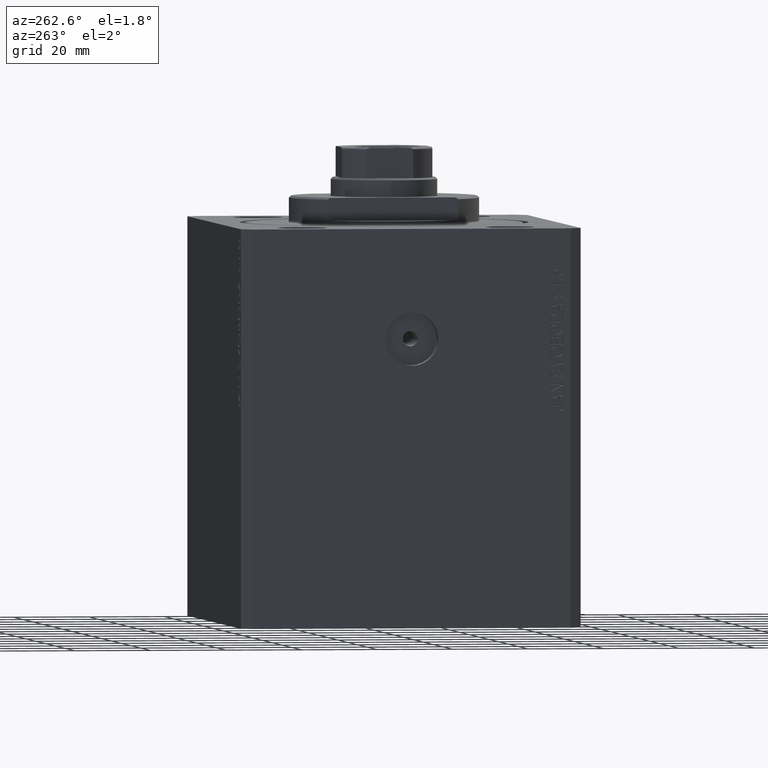
[diagram: clean part render]
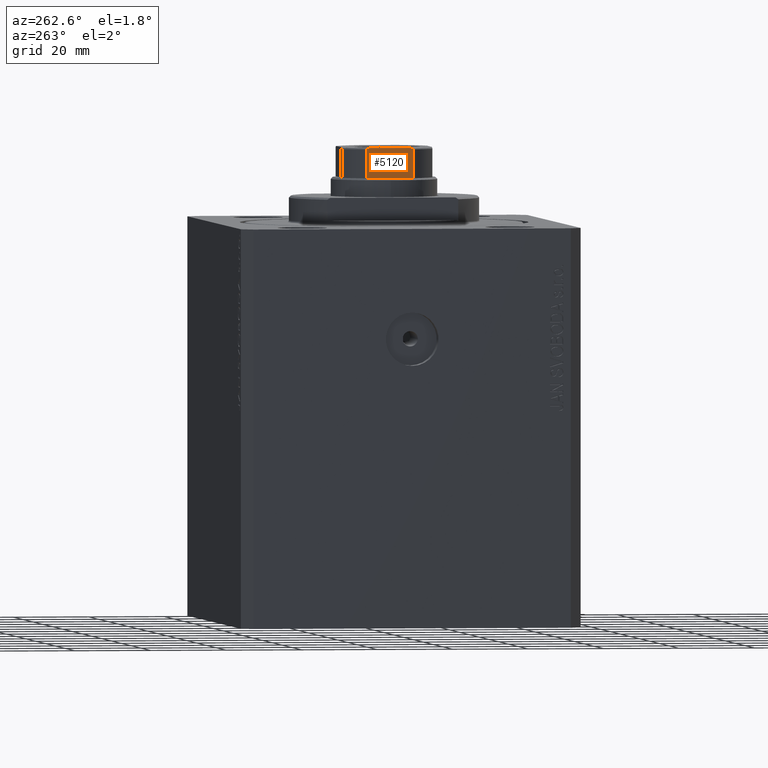
[diagram: same view with one face highlighted and labeled with its STEP entity id]
A machine part, auxiliary view. The second image highlights one B-rep face of the part: STEP entity #5120.
In plain terms, the highlighted planar face has unit normal (1, 0, 0).
Its self-contained STEP definition (entity closure, byte-faithful):
#1864 = VECTOR ( 'NONE', #12775, 1000.000000000000000 ) ;
#2467 = ORIENTED_EDGE ( 'NONE', *, *, #18806, .F. ) ;
#2631 = CARTESIAN_POINT ( 'NONE',  ( -11.99999999999999822, -5.230795946637844196, 107.0000000000000426 ) ) ;
#2744 = PLANE ( 'NONE',  #6636 ) ;
#2908 = EDGE_CURVE ( 'NONE', #29739, #20045, #37519, .T. ) ;
#3051 = LINE ( 'NONE', #44109, #1864 ) ;
#3403 = CARTESIAN_POINT ( 'NONE',  ( -11.99999999999999822, 11.99999999999999822, 107.0000000000000142 ) ) ;
#3907 = LINE ( 'NONE', #32117, #34719 ) ;
#4070 = EDGE_CURVE ( 'NONE', #11440, #29739, #3907, .T. ) ;
#4339 = DIRECTION ( 'NONE',  ( 7.228014483236695816E-17, -1.000000000000000000, 0.000000000000000000 ) ) ;
#4907 = CARTESIAN_POINT ( 'NONE',  ( -12.00000000000000000, 6.184658438426490434, 106.5000000000000142 ) ) ;
#5120 = ADVANCED_FACE ( 'NONE', ( #20769 ), #2744, .F. ) ;
#6011 = CARTESIAN_POINT ( 'NONE',  ( -11.99999999999999822, -6.091003570118828314, 106.7080862465981426 ) ) ;
#6636 = AXIS2_PLACEMENT_3D ( 'NONE', #3403, #34325, #20099 ) ;
#6829 = CARTESIAN_POINT ( 'NONE',  ( -12.00000000000000178, -6.184658438426485993, -0.001000000000001000089 ) ) ;
#6890 = ORIENTED_EDGE ( 'NONE', *, *, #2908, .T. ) ;
#7317 = ORIENTED_EDGE ( 'NONE', *, *, #4070, .T. ) ;
#7833 = VERTEX_POINT ( 'NONE', #4907 ) ;
#8129 = ORIENTED_EDGE ( 'NONE', *, *, #31977, .T. ) ;
#8960 = CARTESIAN_POINT ( 'NONE',  ( -11.99999999999999822, -5.900889097622413537, 106.8429613869932666 ) ) ;
#9380 = B_SPLINE_CURVE_WITH_KNOTS ( 'NONE', 3,
 ( #15732, #43241, #12337, #6011, #39870, #8960, #26357, #19770, #2631, #31261 ),
 .UNSPECIFIED., .F., .F.,
 ( 4, 2, 2, 2, 4 ),
 ( 0.000000000000000000, 0.0001740189231935414564, 0.0003480378463870829127, 0.0006960756927741636570, 0.001392151385548313653 ),
 .UNSPECIFIED. ) ;
#11307 = CARTESIAN_POINT ( 'NONE',  ( -12.00000000000000000, 6.184658438426489546, 99.00000000000001421 ) ) ;
#11440 = VERTEX_POINT ( 'NONE', #11307 ) ;
#11773 = LINE ( 'NONE', #25557, #18310 ) ;
#12337 = CARTESIAN_POINT ( 'NONE',  ( -11.99999999999999467, -6.161088279078732910, 106.6146234191510302 ) ) ;
#12775 = DIRECTION ( 'NONE',  ( -0.000000000000000000, -0.000000000000000000, 1.000000000000000000 ) ) ;
#12900 = CARTESIAN_POINT ( 'NONE',  ( -12.00000000000000000, 6.184658438426490434, 106.5000000000000142 ) ) ;
#13337 = CARTESIAN_POINT ( 'NONE',  ( -12.00000000000000178, 5.903192932991101038, 106.8415152347680674 ) ) ;
#14526 = VECTOR ( 'NONE', #34361, 1000.000000000000000 ) ;
#15732 = CARTESIAN_POINT ( 'NONE',  ( -12.00000000000000178, -6.184658438426485993, 106.5000000000000142 ) ) ;
#16078 = CARTESIAN_POINT ( 'NONE',  ( -11.99999999999999822, 5.793822051191361844, 106.8841735219943843 ) ) ;
#17088 = VERTEX_POINT ( 'NONE', #23536 ) ;
#18310 = VECTOR ( 'NONE', #4339, 1000.000000000000000 ) ;
#18806 = EDGE_CURVE ( 'NONE', #11440, #7833, #3051, .T. ) ;
#19402 = CARTESIAN_POINT ( 'NONE',  ( -12.00000000000000178, -6.184658438426485993, 106.5000000000000142 ) ) ;
#19677 = CARTESIAN_POINT ( 'NONE',  ( -11.99999999999999822, 5.000000000000000888, 107.0000000000000142 ) ) ;
#19770 = CARTESIAN_POINT ( 'NONE',  ( -11.99999999999999467, -5.458892612163326774, 106.9796099716497793 ) ) ;
#20045 = VERTEX_POINT ( 'NONE', #19402 ) ;
#20099 = DIRECTION ( 'NONE',  ( -7.228014483236695816E-17, 1.000000000000000000, 0.000000000000000000 ) ) ;
#20102 = CARTESIAN_POINT ( 'NONE',  ( -11.99999999999999645, 6.045866546018593191, 106.7461068616299400 ) ) ;
#20769 = FACE_OUTER_BOUND ( 'NONE', #43189, .T. ) ;
#21288 = DIRECTION ( 'NONE',  ( 7.228014483236695816E-17, -1.000000000000000000, 0.000000000000000000 ) ) ;
#23080 = CARTESIAN_POINT ( 'NONE',  ( -11.99999999999999822, 6.160856115322541626, 106.6149782197479112 ) ) ;
#23536 = CARTESIAN_POINT ( 'NONE',  ( -11.99999999999999822, -5.000000000000001776, 107.0000000000000142 ) ) ;
#23715 = EDGE_CURVE ( 'NONE', #20045, #17088, #9380, .T. ) ;
#25557 = CARTESIAN_POINT ( 'NONE',  ( -11.99999999999999822, 11.99999999999999822, 107.0000000000000142 ) ) ;
#26303 = VERTEX_POINT ( 'NONE', #34351 ) ;
#26357 = CARTESIAN_POINT ( 'NONE',  ( -11.99999999999999822, -5.792513940493509317, 106.8846382036009430 ) ) ;
#29739 = VERTEX_POINT ( 'NONE', #41137 ) ;
#30081 = CARTESIAN_POINT ( 'NONE',  ( -12.00000000000000000, 5.459934723612540175, 106.9794964115812519 ) ) ;
#31261 = CARTESIAN_POINT ( 'NONE',  ( -11.99999999999999822, -5.000000000000001776, 107.0000000000000142 ) ) ;
#31667 = EDGE_CURVE ( 'NONE', #26303, #17088, #11773, .T. ) ;
#31977 = EDGE_CURVE ( 'NONE', #26303, #7833, #37653, .T. ) ;
#32117 = CARTESIAN_POINT ( 'NONE',  ( -11.99999999999999822, 11.99999999999999822, 99.00000000000000000 ) ) ;
#33666 = CARTESIAN_POINT ( 'NONE',  ( -11.99999999999999822, 6.091027642353964211, 106.7080088155617261 ) ) ;
#34325 = DIRECTION ( 'NONE',  ( 1.000000000000000000, 7.228014483236695816E-17, -0.000000000000000000 ) ) ;
#34351 = CARTESIAN_POINT ( 'NONE',  ( -11.99999999999999822, 5.000000000000000888, 107.0000000000000142 ) ) ;
#34361 = DIRECTION ( 'NONE',  ( -0.000000000000000000, -0.000000000000000000, 1.000000000000000000 ) ) ;
#34719 = VECTOR ( 'NONE', #21288, 1000.000000000000000 ) ;
#37271 = CARTESIAN_POINT ( 'NONE',  ( -11.99999999999999822, 6.184658438426498428, 106.5589821493407499 ) ) ;
#37519 = LINE ( 'NONE', #6829, #14526 ) ;
#37653 = B_SPLINE_CURVE_WITH_KNOTS ( 'NONE', 3,
 ( #19677, #41071, #30081, #16078, #13337, #20102, #33666, #23080, #37271, #12900 ),
 .UNSPECIFIED., .F., .F.,
 ( 4, 2, 2, 2, 4 ),
 ( 0.000000000000000000, 0.0006877128613558533337, 0.001031569292033773007, 0.001203497507372733007, 0.001375425722711693007 ),
 .UNSPECIFIED. ) ;
#39087 = ORIENTED_EDGE ( 'NONE', *, *, #23715, .T. ) ;
#39870 = CARTESIAN_POINT ( 'NONE',  ( -11.99999999999999822, -6.046414714222234643, 106.7457872300293076 ) ) ;
#41071 = CARTESIAN_POINT ( 'NONE',  ( -11.99999999999999822, 5.230809753656821215, 107.0000000000000142 ) ) ;
#41137 = CARTESIAN_POINT ( 'NONE',  ( -12.00000000000000178, -6.184658438426485993, 99.00000000000001421 ) ) ;
#41731 = ORIENTED_EDGE ( 'NONE', *, *, #31667, .F. ) ;
#43189 = EDGE_LOOP ( 'NONE', ( #6890, #39087, #41731, #8129, #2467, #7317 ) ) ;
#43241 = CARTESIAN_POINT ( 'NONE',  ( -12.00000000000000355, -6.184658438426487770, 106.5589344020394265 ) ) ;
#44109 = CARTESIAN_POINT ( 'NONE',  ( -12.00000000000000000, 6.184658438426490434, -0.001000000000001000089 ) ) ;